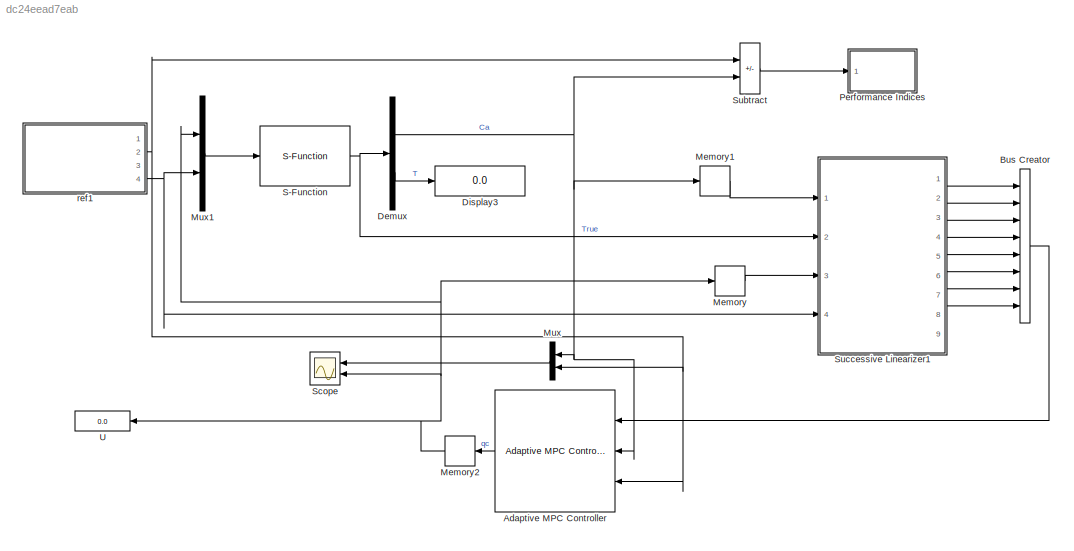
MODEL slx_dc24eead7eab
KIND model
CONFIG AbsTol = auto
CONFIG EnableMultiTasking = off
CONFIG FixedStep = auto
CONFIG MaxStep = 0.5
CONFIG MinStep = auto
CONFIG RelTol = 1e-3
CONFIG SampleTimeConstraint = Unconstrained
CONFIG SolverName = VariableStepAuto
CONFIG StartTime = 0.0
CONFIG StopTime = 400
BLOCK [Reference] Adaptive MPC Controller  REF=mpclib/Adaptive MPC Controller  (lib defined in mdl_ae329e0e0455)
  Ports = [3, 1]
  SCDEnableBlockLinearizationSpecification = on
  SourceBlock = mpclib/Adaptive MPC Controller
  SourceProductBaseCode = MP
  SourceType = Adaptive MPC
BLOCK [BusCreator] Bus Creator
  DisplayOption = bar
  InheritFromInputs = on
  Inputs = 8
  Ports = [8, 1]
BLOCK [Demux] Demux
  Outputs = 2
  Ports = [1, 2]
BLOCK [Display] Display3
  Decimation = 1
  Ports = [1]
BLOCK [Memory] Memory
  InitialCondition = 103.41
BLOCK [Memory] Memory1
  InitialCondition = 0.1
BLOCK [Memory] Memory2
  InitialCondition = 103.41
BLOCK [Mux] Mux
  DisplayOption = bar
  Inputs = 2
  NameLocation = top
  Ports = [2, 1]
BLOCK [Mux] Mux1
  DisplayOption = bar
  Inputs = 2
  Ports = [2, 1]
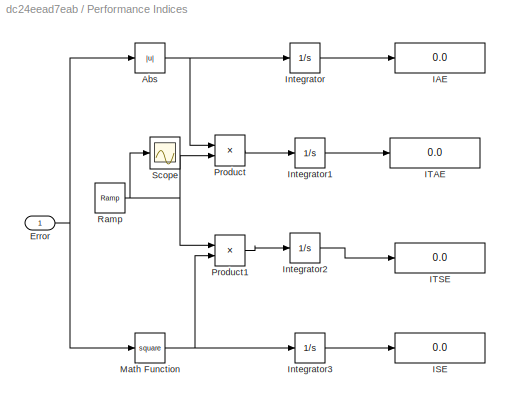
BLOCK [SubSystem] Performance Indices
  Ports = [1]
  RequestExecContextInheritance = off
BLOCK [Abs] Performance Indices/Abs
  SaturateOnIntegerOverflow = off
BLOCK [Inport] Performance Indices/Error
BLOCK [Display] Performance Indices/IAE
  Decimation = 1
  Ports = [1]
BLOCK [Display] Performance Indices/ISE
  Decimation = 1
  Ports = [1]
BLOCK [Display] Performance Indices/ITAE
  Decimation = 1
  Ports = [1]
BLOCK [Display] Performance Indices/ITSE
  Decimation = 1
  Ports = [1]
BLOCK [Integrator] Performance Indices/Integrator
  Ports = [1, 1]
BLOCK [Integrator] Performance Indices/Integrator1
  Ports = [1, 1]
BLOCK [Integrator] Performance Indices/Integrator2
  Ports = [1, 1]
BLOCK [Integrator] Performance Indices/Integrator3
  Ports = [1, 1]
BLOCK [Math] Performance Indices/Math Function
  Operator = square
  Ports = [1, 1]
  SignedPower = on
BLOCK [Product] Performance Indices/Product
  Ports = [2, 1]
  RndMeth = Zero
BLOCK [Product] Performance Indices/Product1
  Ports = [2, 1]
  RndMeth = Zero
BLOCK [Reference] Performance Indices/Ramp  REF=simulink/Sources/Ramp
  Ports = [0, 1]
  SourceBlock = simulink/Sources/Ramp
  SourceProductBaseCode = SL
  SourceType = Ramp
BLOCK [Scope] Performance Indices/Scope
  Floating = off
  NumInputPorts = 1
  Ports = [1]
  ScopeSpecificationString = Simulink.scopes.TimeScopeBlockCfg('CurrentConfiguration', extmgr.ConfigurationSet(extmgr.Configuration('Core','General UI',true),extmgr.Configuration('Core','Source UI',true),extmgr.Configuration('Sources','WiredSimulink',true,'DataLoggingLimitDataPoints',true,'DataLoggingSaveFormat','Array','DataLoggingDecimation','1','DataLoggingDecimateData',true),extmgr.Configuration('Visuals','Time Domain',tr...<+878ch>
BLOCK [S-Function] S-Function
  EnableBusSupport = off
  FunctionName = pr_sfun
  Ports = [1, 1]
  SFcnIsStateOwnerBlock = off
  SFunctionDeploymentMode = off
BLOCK [Scope] Scope
  Floating = off
  NumInputPorts = 2
  Ports = [2]
  ScopeSpecificationString = Simulink.scopes.TimeScopeBlockCfg('CurrentConfiguration', extmgr.ConfigurationSet(extmgr.Configuration('Core','General UI',true),extmgr.Configuration('Core','Source UI',true),extmgr.Configuration('Sources','WiredSimulink',true,'DataLoggingVariableName','ScopeData1','DataLogging',true),extmgr.Configuration('Visuals','Time Domain',true,'SerializedDisplays',{struct('MinYLimReal','0.02813','MaxYLimRea...<+2072ch>
BLOCK [Sum] Subtract
  IconShape = rectangular
  Inputs = +-
  Ports = [2, 1]
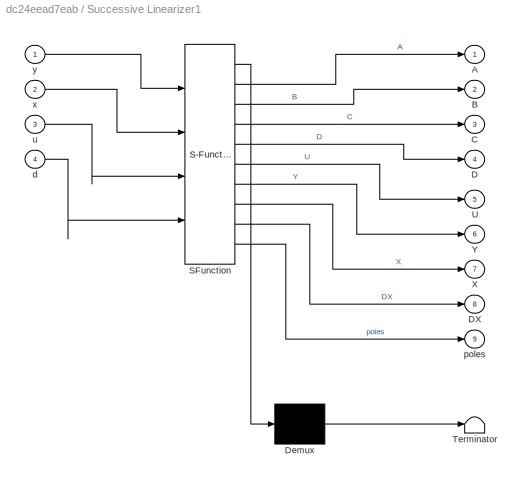
BLOCK [SubSystem] Successive Linearizer1
  ErrorFcn = Stateflow.Translate.translate
  PermitHierarchicalResolution = ExplicitOnly
  Ports = [4, 9]
  RequestExecContextInheritance = off
  SFBlockType = MATLAB Function
  SystemSampleTime = 0.5
  TreatAsAtomicUnit = on
BLOCK [Demux] Successive Linearizer1/ Demux 
  Outputs = 1
  Ports = [1, 1]
BLOCK [S-Function] Successive Linearizer1/ SFunction 
  EnableBusSupport = on
  FunctionName = sf_sfun
  PortCounts = [4 10]
  Ports = [4, 10]
  SFcnIsStateOwnerBlock = off
  SFunctionDeploymentMode = off
  Tag = Stateflow S-Function 1
BLOCK [Terminator] Successive Linearizer1/ Terminator 
BLOCK [Outport] Successive Linearizer1/A
  VectorParamsAs1DForOutWhenUnconnected = off
BLOCK [Outport] Successive Linearizer1/B
  Port = 2
  VectorParamsAs1DForOutWhenUnconnected = off
BLOCK [Outport] Successive Linearizer1/C
  Port = 3
  VectorParamsAs1DForOutWhenUnconnected = off
BLOCK [Outport] Successive Linearizer1/D
  Port = 4
  VectorParamsAs1DForOutWhenUnconnected = off
BLOCK [Outport] Successive Linearizer1/DX
  Port = 8
  VectorParamsAs1DForOutWhenUnconnected = off
BLOCK [Outport] Successive Linearizer1/U
  Port = 5
  VectorParamsAs1DForOutWhenUnconnected = off
BLOCK [Outport] Successive Linearizer1/X
  Port = 7
  VectorParamsAs1DForOutWhenUnconnected = off
BLOCK [Outport] Successive Linearizer1/Y
  Port = 6
  VectorParamsAs1DForOutWhenUnconnected = off
BLOCK [Inport] Successive Linearizer1/d
  Port = 4
BLOCK [Outport] Successive Linearizer1/poles
  Port = 9
BLOCK [Inport] Successive Linearizer1/u
  Port = 3
BLOCK [Inport] Successive Linearizer1/x
  Port = 2
BLOCK [Inport] Successive Linearizer1/y
BLOCK [Display] U
  Decimation = 1
  Ports = [1]
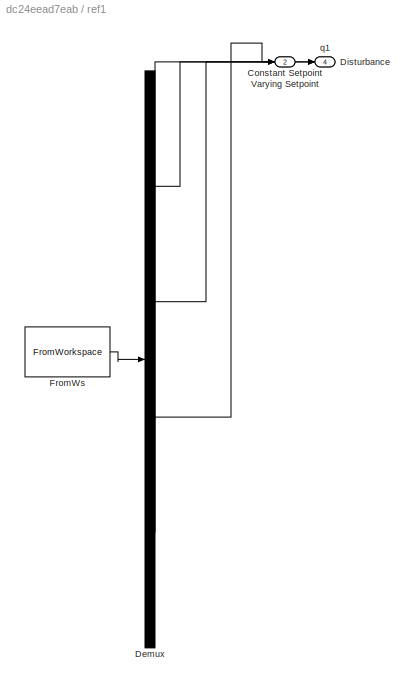
BLOCK [SubSystem] ref1 
  ClipboardFcn = sigbuilder_block('clipboard');
  CloseFcn = sigbuilder_block('close');
  ContinueFcn = sigbuilder_block('continue');
  CopyFcn = sigbuilder_block('copy');
  DeleteFcn = sigbuilder_block('delete');
  LoadFcn = sigbuilder_block('load');
  MaskHideContents = on
  ModelCloseFcn = sigbuilder_block('modelClose');
  NameChangeFcn = sigbuilder_block('namechange');
  OpenFcn = sigbuilder_block('open',[5.5 0 949 448 ]);
  PauseFcn = sigbuilder_block('pause');
  Ports = [0, 4]
  PreSaveFcn = sigbuilder_block('preSave');
  RequestExecContextInheritance = off
  StartFcn = sigbuilder_block('start');
  StopFcn = sigbuilder_block('stop');
  Tag = STV Subsys
BLOCK [Outport] ref1 /Constant Setpoint
  Tag = STV Outport
BLOCK [Demux] ref1 /Demux
  DisplayOption = none
  Ports = [1, 4]
  Tag = STV Demux
BLOCK [Outport] ref1 /Disturbance
  Port = 4
  Tag = STV Outport
BLOCK [FromWorkspace] ref1 /FromWs
  Tag = STV FromWs
  VariableName = tuvar
BLOCK [Outport] ref1 /Varying Setpoint
  Port = 2
  Tag = STV Outport
  VectorParamsAs1DForOutWhenUnconnected = off
BLOCK [Outport] ref1 /q1
  Port = 3
  Tag = STV Outport
LINE Adaptive MPC Controller:1 -> Memory2:1
LINE Bus Creator:1 -> Adaptive MPC Controller:1
NET Demux:1 -> Adaptive MPC Controller:2, Memory1:1, Mux:1, Subtract:2
LINE Demux:2 -> Display3:1
LINE Memory1:1 -> Successive Linearizer1:1
NET Memory2:1 -> Memory:1, Mux1:1, Scope:2, U:1
LINE Memory:1 -> Successive Linearizer1:3
LINE Mux1:1 -> S-Function:1
LINE Mux:1 -> Scope:1
NET Performance Indices/Abs:1 -> Performance Indices/Integrator:1, Performance Indices/Product:1
NET Performance Indices/Error:1 -> Performance Indices/Abs:1, Performance Indices/Math Function:1
LINE Performance Indices/Integrator1:1 -> Performance Indices/ITAE:1
LINE Performance Indices/Integrator2:1 -> Performance Indices/ITSE:1
LINE Performance Indices/Integrator3:1 -> Performance Indices/ISE:1
LINE Performance Indices/Integrator:1 -> Performance Indices/IAE:1
NET Performance Indices/Math Function:1 -> Performance Indices/Integrator3:1, Performance Indices/Product1:2
LINE Performance Indices/Product1:1 -> Performance Indices/Integrator2:1
LINE Performance Indices/Product:1 -> Performance Indices/Integrator1:1
NET Performance Indices/Ramp:1 -> Performance Indices/Product1:1, Performance Indices/Product:2, Performance Indices/Scope:1
NET S-Function:1 -> Demux:1, Successive Linearizer1:2
LINE Subtract:1 -> Performance Indices:1
LINE Successive Linearizer1:1 -> Bus Creator:1
LINE Successive Linearizer1:2 -> Bus Creator:2
LINE Successive Linearizer1:3 -> Bus Creator:3
LINE Successive Linearizer1:4 -> Bus Creator:4
LINE Successive Linearizer1:5 -> Bus Creator:5
LINE Successive Linearizer1:6 -> Bus Creator:6
LINE Successive Linearizer1:7 -> Bus Creator:7
LINE Successive Linearizer1:8 -> Bus Creator:8
NET ref1 :2 -> Adaptive MPC Controller:3, Mux:2, Subtract:1
NET ref1 :4 -> Mux1:2, Successive Linearizer1:4
note: NET lines group one-source signal fan-out (src -> all destinations, sorted); 1:1 wires keep LINE
CHART Successive Linearizer1 states=1 transitions=1
  STATE_LABEL 'eML_blk_kernel()'
  STATE_LABEL 'SCRIPT:\nfunction [A, B, C, D, U, Y, X, DX,poles] = fcn(y, x, u, d)\n\n%%%%%%%%%%%%%%%%%%%%%%%%%%%%%%%%%%%%%%%%%%%%%%%%%%%%%%%\n%#codegen\n\n% Define constant outputs\nTs = 0.1;\nU = u(1) ;\nY = y ;\nX = x(1:2) ;\n\n\n\n% Analytical linearization of mechanistic CSTR model (continuous time)\n% [A, Bo] = getContinuous(T, CA, CAi, Ti, Tc);\n[a, b, c, d] = getContinuous(y, x, u, d, Ts)  ;\n\n% Convert continuous to dis...<+2082ch>'
CHART  states=0 transitions=0
